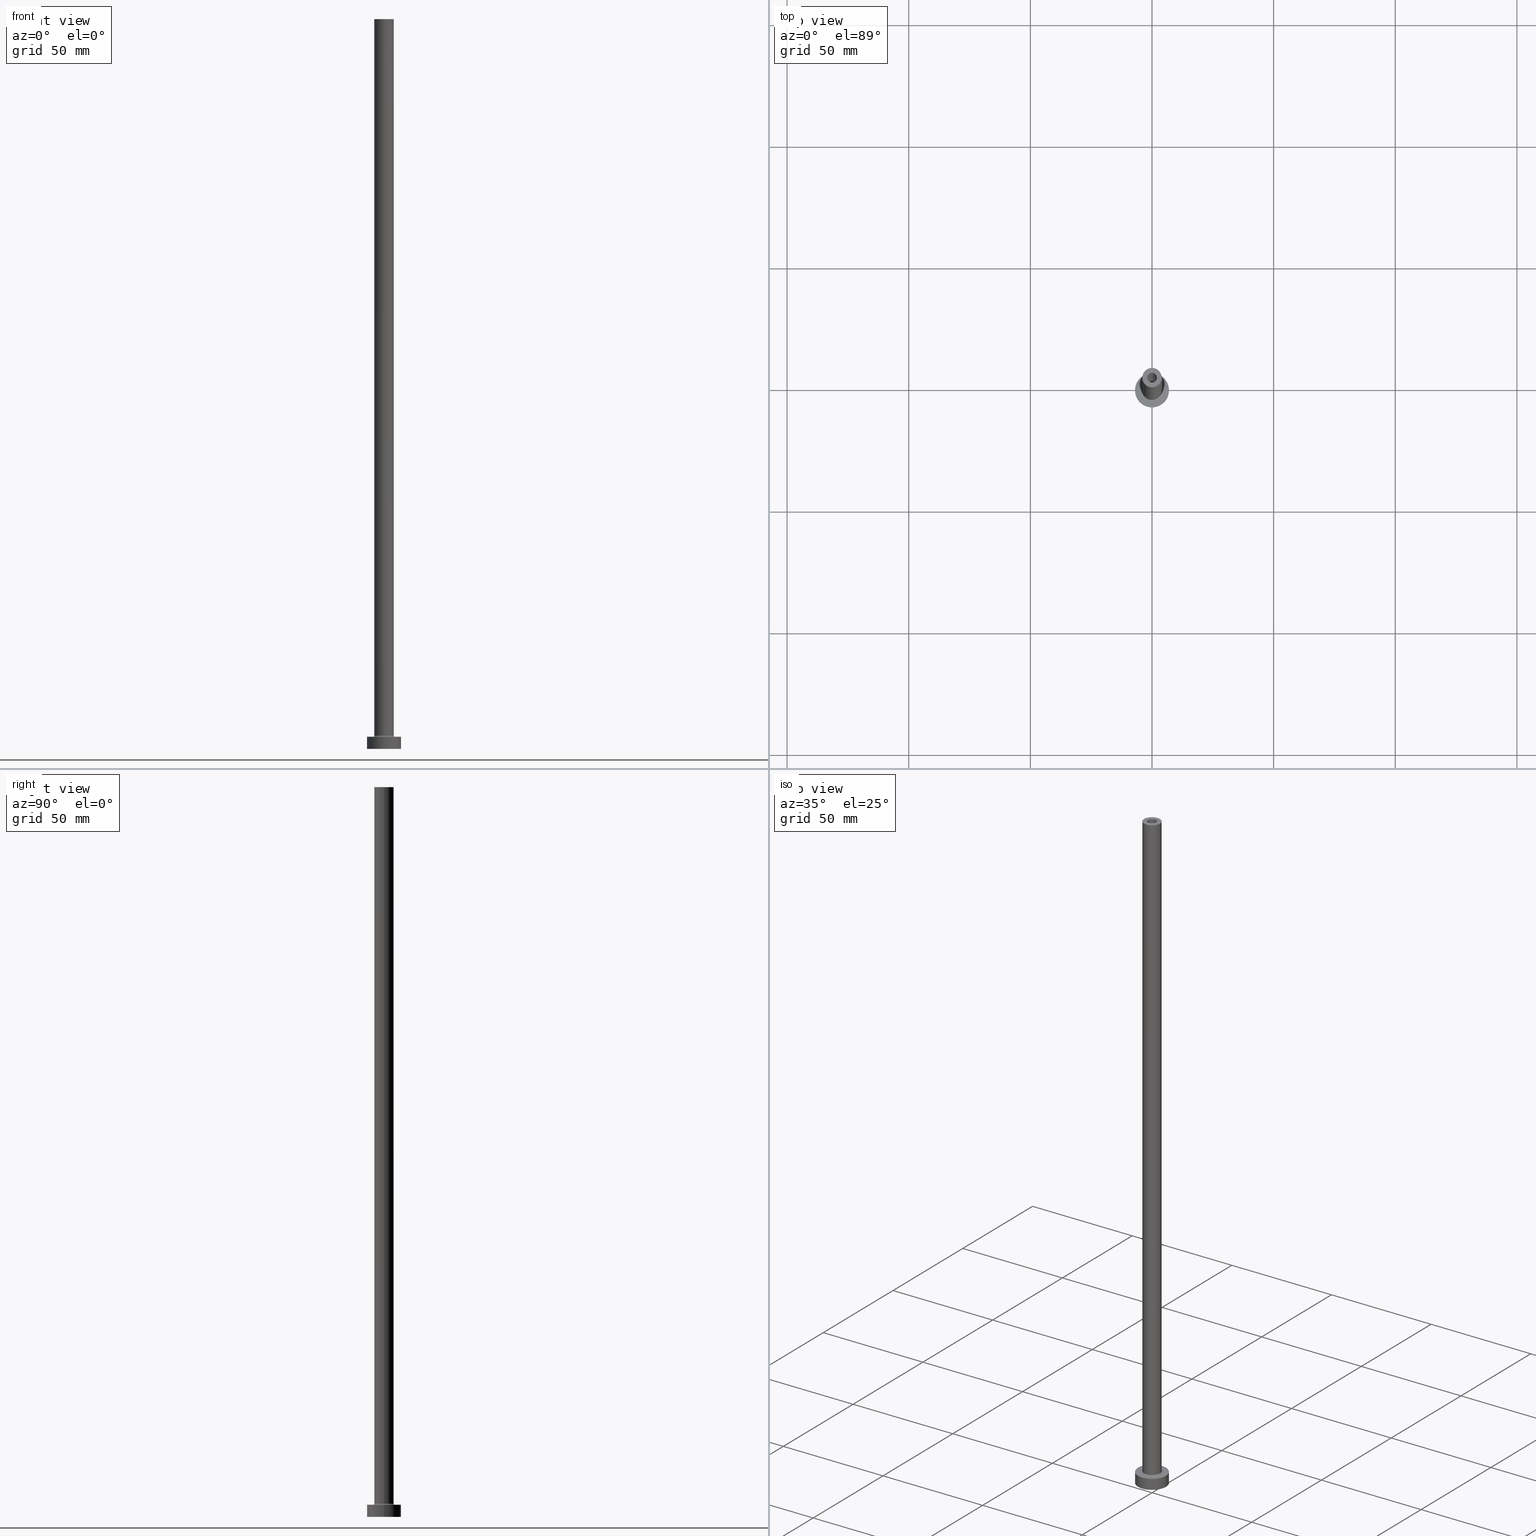
[diagram: canonical four-view strip — front | top / right | iso, engineering-drawing reading convention]
A machine part, canonical four-view strip (front | top / right | iso — engineering-drawing reading convention). The complete STEP part file that produces these views, byte-faithful:
ISO-10303-21;
HEADER;
FILE_DESCRIPTION (( 'STEP AP203' ),
    '1' );
FILE_NAME ('4f3f.STEP',
    '2023-02-13T17:38:03',
    ( '' ),
    ( '' ),
    'SwSTEP 2.0',
    'SolidWorks 2019',
    '' );
FILE_SCHEMA (( 'CONFIG_CONTROL_DESIGN' ));
ENDSEC;

DATA;
#1 = DIRECTION ( 'NONE',  ( 0.000000000000000000, 0.000000000000000000, 1.000000000000000000 ) ) ;
#2 = LINE ( 'NONE', #107, #106 ) ;
#3 = CARTESIAN_POINT ( 'NONE',  ( 7.000000000000000000, 8.572527594031473190E-16, 0.000000000000000000 ) ) ;
#4 = ADVANCED_FACE ( 'NONE', ( #273 ), #378, .F. ) ;
#5 = TOROIDAL_SURFACE ( 'NONE', #397, 4.500000000000000888, 0.5000000000000000000 ) ;
#6 = CARTESIAN_POINT ( 'NONE',  ( 0.000000000000000000, 0.000000000000000000, 0.000000000000000000 ) ) ;
#7 = DIRECTION ( 'NONE',  ( 0.000000000000000000, 0.000000000000000000, 1.000000000000000000 ) ) ;
#8 = EDGE_CURVE ( 'NONE', #417, #258, #18, .T. ) ;
#9 = CARTESIAN_POINT ( 'NONE',  ( 2.000000000000000000, 2.449293598294705921E-16, 300.0000000000000000 ) ) ;
#10 = EDGE_LOOP ( 'NONE', ( #308, #301, #68, #226 ) ) ;
#11 = PERSON_AND_ORGANIZATION ( #235, #350 ) ;
#12 = CARTESIAN_POINT ( 'NONE',  ( 0.000000000000000000, 0.000000000000000000, 300.0000000000000000 ) ) ;
#13 = EDGE_LOOP ( 'NONE', ( #17, #294 ) ) ;
#14 = CARTESIAN_POINT ( 'NONE',  ( 0.000000000000000000, 0.000000000000000000, 5.500000000000005329 ) ) ;
#15 = CARTESIAN_POINT ( 'NONE',  ( 2.149999999999999911, 2.632990618166809235E-16, 255.0000000000000000 ) ) ;
#16 = EDGE_CURVE ( 'NONE', #306, #240, #262, .T. ) ;
#17 = ORIENTED_EDGE ( 'NONE', *, *, #246, .T. ) ;
#18 = CIRCLE ( 'NONE', #348, 4.000000000000000000 ) ;
#19 = LINE ( 'NONE', #96, #41 ) ;
#20 = ORIENTED_EDGE ( 'NONE', *, *, #428, .F. ) ;
#21 = AXIS2_PLACEMENT_3D ( 'NONE', #6, #252, #424 ) ;
#22 = CC_DESIGN_APPROVAL ( #326, ( #391 ) ) ;
#23 = FACE_OUTER_BOUND ( 'NONE', #32, .T. ) ;
#24 = ORIENTED_EDGE ( 'NONE', *, *, #297, .T. ) ;
#25 = ADVANCED_FACE ( 'NONE', ( #149, #392 ), #359, .F. ) ;
#26 = DIRECTION ( 'NONE',  ( 1.000000000000000000, 0.000000000000000000, 0.000000000000000000 ) ) ;
#27 = EDGE_LOOP ( 'NONE', ( #459, #168, #458, #204 ) ) ;
#28 = DIRECTION ( 'NONE',  ( -1.000000000000000000, 1.224646799147351482E-16, 0.000000000000000000 ) ) ;
#29 = ORIENTED_EDGE ( 'NONE', *, *, #126, .T. ) ;
#30 = AXIS2_PLACEMENT_3D ( 'NONE', #52, #435, #405 ) ;
#31 = APPROVAL_PERSON_ORGANIZATION ( #186, #318, #410 ) ;
#32 = EDGE_LOOP ( 'NONE', ( #90, #271, #312, #229 ) ) ;
#33 = CARTESIAN_POINT ( 'NONE',  ( 0.000000000000000000, 0.000000000000000000, 300.0000000000000000 ) ) ;
#34 = CC_DESIGN_PERSON_AND_ORGANIZATION_ASSIGNMENT ( #227, #267, ( #102 ) ) ;
#35 = DIRECTION ( 'NONE',  ( 1.000000000000000000, 0.000000000000000000, 0.000000000000000000 ) ) ;
#36 = VECTOR ( 'NONE', #311, 1000.000000000000000 ) ;
#37 = CYLINDRICAL_SURFACE ( 'NONE', #321, 2.149999999999999911 ) ;
#38 = EDGE_CURVE ( 'NONE', #242, #419, #445, .T. ) ;
#39 = DIRECTION ( 'NONE',  ( 1.000000000000000000, 0.000000000000000000, 0.000000000000000000 ) ) ;
#40 = CARTESIAN_POINT ( 'NONE',  ( 0.000000000000000000, 0.000000000000000000, 5.000000000000000000 ) ) ;
#41 = VECTOR ( 'NONE', #57, 1000.000000000000000 ) ;
#42 = LINE ( 'NONE', #296, #390 ) ;
#43 = EDGE_LOOP ( 'NONE', ( #135, #237 ) ) ;
#44 = COORDINATED_UNIVERSAL_TIME_OFFSET ( 1, 0, .AHEAD. ) ;
#45 = DIRECTION ( 'NONE',  ( 0.000000000000000000, 0.000000000000000000, 1.000000000000000000 ) ) ;
#46 = VERTEX_POINT ( 'NONE', #3 ) ;
#47 = COORDINATED_UNIVERSAL_TIME_OFFSET ( 1, 0, .AHEAD. ) ;
#48 = DIRECTION ( 'NONE',  ( -0.000000000000000000, -0.000000000000000000, -1.000000000000000000 ) ) ;
#49 = VERTEX_POINT ( 'NONE', #283 ) ;
#50 = PERSON_AND_ORGANIZATION_ROLE ( 'design_owner' ) ;
#51 = AXIS2_PLACEMENT_3D ( 'NONE', #257, #7, #331 ) ;
#52 = CARTESIAN_POINT ( 'NONE',  ( 0.000000000000000000, 0.000000000000000000, 5.500000000000005329 ) ) ;
#53 = LOCAL_TIME ( 18, 38, 3.000000000000000000, #120 ) ;
#54 = EDGE_CURVE ( 'NONE', #269, #160, #356, .T. ) ;
#55 = CARTESIAN_POINT ( 'NONE',  ( 0.000000000000000000, 0.000000000000000000, 261.0811183182043465 ) ) ;
#56 = CALENDAR_DATE ( 2023, 13, 2 ) ;
#57 = DIRECTION ( 'NONE',  ( 0.000000000000000000, 0.000000000000000000, -1.000000000000000000 ) ) ;
#58 = CARTESIAN_POINT ( 'NONE',  ( 0.000000000000000000, 0.000000000000000000, 300.0000000000000000 ) ) ;
#59 = CLOSED_SHELL ( 'NONE', ( #422, #305, #215, #91, #76, #139, #150, #134, #351, #111, #334, #71, #25, #4 ) ) ;
#60 = CARTESIAN_POINT ( 'NONE',  ( -4.500000000000000888, 5.510910596163089556E-16, 5.500000000000005329 ) ) ;
#61 = EDGE_LOOP ( 'NONE', ( #185, #384, #174, #207 ) ) ;
#62 = CC_DESIGN_DATE_AND_TIME_ASSIGNMENT ( #220, #188, ( #391 ) ) ;
#63 = DIRECTION ( 'NONE',  ( 0.000000000000000000, 0.000000000000000000, -1.000000000000000000 ) ) ;
#64 = EDGE_LOOP ( 'NONE', ( #414, #344 ) ) ;
#65 = CARTESIAN_POINT ( 'NONE',  ( -2.000000000000000000, 0.000000000000000000, 255.0000000000000000 ) ) ;
#66 = ORIENTED_EDGE ( 'NONE', *, *, #187, .T. ) ;
#67 = AXIS2_PLACEMENT_3D ( 'NONE', #360, #320, #247 ) ;
#68 = ORIENTED_EDGE ( 'NONE', *, *, #370, .T. ) ;
#69 = AXIS2_PLACEMENT_3D ( 'NONE', #176, #1, #109 ) ;
#70 = CC_DESIGN_APPROVAL ( #455, ( #345 ) ) ;
#71 = ADVANCED_FACE ( 'NONE', ( #214 ), #37, .F. ) ;
#72 = FACE_BOUND ( 'NONE', #123, .T. ) ;
#73 = APPLICATION_CONTEXT ( 'configuration controlled 3d designs of mechanical parts and assemblies' ) ;
#74 = DIRECTION ( 'NONE',  ( 0.000000000000000000, 0.000000000000000000, 1.000000000000000000 ) ) ;
#75 = CARTESIAN_POINT ( 'NONE',  ( 0.000000000000000000, 0.000000000000000000, 255.0000000000000000 ) ) ;
#76 = ADVANCED_FACE ( 'NONE', ( #315 ), #80, .T. ) ;
#77 = AXIS2_PLACEMENT_3D ( 'NONE', #292, #402, #289 ) ;
#78 = CARTESIAN_POINT ( 'NONE',  ( 0.000000000000000000, 0.000000000000000000, 300.0000000000000000 ) ) ;
#79 = UNCERTAINTY_MEASURE_WITH_UNIT (LENGTH_MEASURE( 1.000000000000000082E-05 ), #452, 'distance_accuracy_value', 'NONE');
#80 = CYLINDRICAL_SURFACE ( 'NONE', #299, 7.000000000000000000 ) ;
#81 = CARTESIAN_POINT ( 'NONE',  ( 0.000000000000000000, 0.000000000000000000, 5.500000000000005329 ) ) ;
#82 = AXIS2_PLACEMENT_3D ( 'NONE', #290, #155, #184 ) ;
#83 = LOCAL_TIME ( 18, 38, 3.000000000000000000, #194 ) ;
#84 = CARTESIAN_POINT ( 'NONE',  ( -7.000000000000000000, 0.000000000000000000, 5.000000000000000000 ) ) ;
#85 = PERSON_AND_ORGANIZATION ( #235, #350 ) ;
#86 = DIRECTION ( 'NONE',  ( 0.000000000000000000, 0.000000000000000000, -1.000000000000000000 ) ) ;
#87 = ORIENTED_EDGE ( 'NONE', *, *, #437, .T. ) ;
#88 = SHAPE_DEFINITION_REPRESENTATION ( #234, #152 ) ;
#89 = DIRECTION ( 'NONE',  ( 0.000000000000000000, 0.000000000000000000, -1.000000000000000000 ) ) ;
#90 = ORIENTED_EDGE ( 'NONE', *, *, #406, .T. ) ;
#91 = ADVANCED_FACE ( 'NONE', ( #141 ), #281, .T. ) ;
#92 = APPROVAL_DATE_TIME ( #446, #318 ) ;
#93 = CIRCLE ( 'NONE', #82, 4.500000000000000888 ) ;
#94 = CARTESIAN_POINT ( 'NONE',  ( 0.000000000000000000, 0.000000000000000000, 5.000000000000000000 ) ) ;
#95 = APPROVAL_DATE_TIME ( #253, #455 ) ;
#96 = CARTESIAN_POINT ( 'NONE',  ( -2.149999999999999911, 0.000000000000000000, 261.0811183182043465 ) ) ;
#97 = ORIENTED_EDGE ( 'NONE', *, *, #38, .F. ) ;
#98 = LINE ( 'NONE', #165, #36 ) ;
#99 = APPLICATION_CONTEXT ( 'configuration controlled 3d designs of mechanical parts and assemblies' ) ;
#100 = ORIENTED_EDGE ( 'NONE', *, *, #182, .F. ) ;
#101 = ORIENTED_EDGE ( 'NONE', *, *, #433, .T. ) ;
#102 = PRODUCT_DEFINITION_FORMATION_WITH_SPECIFIED_SOURCE ( 'LIBOVOLN�', '', #148, .NOT_KNOWN. ) ;
#103 = VERTEX_POINT ( 'NONE', #216 ) ;
#104 = VERTEX_POINT ( 'NONE', #180 ) ;
#105 = EDGE_CURVE ( 'NONE', #104, #46, #2, .T. ) ;
#106 = VECTOR ( 'NONE', #362, 1000.000000000000000 ) ;
#107 = CARTESIAN_POINT ( 'NONE',  ( 7.000000000000000000, 8.572527594031473190E-16, 5.000000000000000000 ) ) ;
#108 = CIRCLE ( 'NONE', #438, 2.000000000000000000 ) ;
#109 = DIRECTION ( 'NONE',  ( 1.000000000000000000, 0.000000000000000000, 0.000000000000000000 ) ) ;
#110 = FACE_BOUND ( 'NONE', #328, .T. ) ;
#111 = ADVANCED_FACE ( 'NONE', ( #72, #285 ), #145, .T. ) ;
#112 = DIRECTION ( 'NONE',  ( 1.000000000000000000, 0.000000000000000000, 0.000000000000000000 ) ) ;
#113 = AXIS2_PLACEMENT_3D ( 'NONE', #94, #444, #221 ) ;
#114 = CARTESIAN_POINT ( 'NONE',  ( 0.000000000000000000, 0.000000000000000000, 5.000000000000000000 ) ) ;
#115 = CARTESIAN_POINT ( 'NONE',  ( -2.149999999999999911, 0.000000000000000000, 0.000000000000000000 ) ) ;
#116 = EDGE_CURVE ( 'NONE', #104, #233, #147, .T. ) ;
#117 = CARTESIAN_POINT ( 'NONE',  ( -7.000000000000000000, 0.000000000000000000, 5.000000000000000000 ) ) ;
#118 = MANIFOLD_SOLID_BREP ( 'Odebrat vysunut�m4', #59 ) ;
#119 = AXIS2_PLACEMENT_3D ( 'NONE', #416, #413, #136 ) ;
#120 = COORDINATED_UNIVERSAL_TIME_OFFSET ( 1, 0, .AHEAD. ) ;
#121 = CIRCLE ( 'NONE', #316, 2.000000000000000000 ) ;
#122 = DIRECTION ( 'NONE',  ( 0.000000000000000000, 0.000000000000000000, -1.000000000000000000 ) ) ;
#123 = EDGE_LOOP ( 'NONE', ( #172, #389 ) ) ;
#124 = APPROVAL_ROLE ( '' ) ;
#125 = DIRECTION ( 'NONE',  ( 1.000000000000000000, 0.000000000000000000, 0.000000000000000000 ) ) ;
#126 = EDGE_CURVE ( 'NONE', #233, #104, #461, .T. ) ;
#127 = CARTESIAN_POINT ( 'NONE',  ( 4.000000000000000000, 4.898587196589412829E-16, 300.0000000000000000 ) ) ;
#128 = CIRCLE ( 'NONE', #51, 7.000000000000000000 ) ;
#129 = DIRECTION ( 'NONE',  ( -0.000000000000000000, -0.000000000000000000, -1.000000000000000000 ) ) ;
#130 = CC_DESIGN_APPROVAL ( #318, ( #102 ) ) ;
#131 = ORIENTED_EDGE ( 'NONE', *, *, #198, .T. ) ;
#132 = CARTESIAN_POINT ( 'NONE',  ( 4.000000000000000000, 4.898587196589412829E-16, 5.500000000000005329 ) ) ;
#133 = ORIENTED_EDGE ( 'NONE', *, *, #297, .F. ) ;
#134 = ADVANCED_FACE ( 'NONE', ( #110, #322 ), #319, .F. ) ;
#135 = ORIENTED_EDGE ( 'NONE', *, *, #284, .F. ) ;
#136 = DIRECTION ( 'NONE',  ( 1.000000000000000000, 0.000000000000000000, 0.000000000000000000 ) ) ;
#137 = EDGE_LOOP ( 'NONE', ( #138, #275 ) ) ;
#138 = ORIENTED_EDGE ( 'NONE', *, *, #400, .T. ) ;
#139 = ADVANCED_FACE ( 'NONE', ( #399 ), #245, .T. ) ;
#140 = EDGE_LOOP ( 'NONE', ( #97, #87, #304, #451 ) ) ;
#141 = FACE_OUTER_BOUND ( 'NONE', #140, .T. ) ;
#142 = CIRCLE ( 'NONE', #266, 7.000000000000000000 ) ;
#143 = LOCAL_TIME ( 18, 38, 3.000000000000000000, #44 ) ;
#144 = CARTESIAN_POINT ( 'NONE',  ( 0.000000000000000000, 0.000000000000000000, 5.000000000000000000 ) ) ;
#145 = PLANE ( 'NONE',  #340 ) ;
#146 = DIRECTION ( 'NONE',  ( -0.000000000000000000, -0.000000000000000000, -1.000000000000000000 ) ) ;
#147 = CIRCLE ( 'NONE', #420, 7.000000000000000000 ) ;
#148 = PRODUCT ( '4f3f', '4f3f', '', ( #368 ) ) ;
#149 = FACE_BOUND ( 'NONE', #137, .T. ) ;
#150 = ADVANCED_FACE ( 'NONE', ( #217, #254 ), #369, .T. ) ;
#151 = CARTESIAN_POINT ( 'NONE',  ( 2.149999999999999911, 2.632990618166809235E-16, 261.0811183182043465 ) ) ;
#152 = ADVANCED_BREP_SHAPE_REPRESENTATION ( '4f3f', ( #118, #77 ), #357 ) ;
#153 = DIRECTION ( 'NONE',  ( 0.000000000000000000, 0.000000000000000000, 1.000000000000000000 ) ) ;
#154 = ORIENTED_EDGE ( 'NONE', *, *, #187, .F. ) ;
#155 = DIRECTION ( 'NONE',  ( -0.000000000000000000, -0.000000000000000000, -1.000000000000000000 ) ) ;
#156 = PERSON_AND_ORGANIZATION ( #235, #350 ) ;
#157 = LINE ( 'NONE', #151, #431 ) ;
#158 = PERSON_AND_ORGANIZATION ( #235, #350 ) ;
#159 = DIRECTION ( 'NONE',  ( 0.000000000000000000, 0.000000000000000000, 1.000000000000000000 ) ) ;
#160 = VERTEX_POINT ( 'NONE', #225 ) ;
#161 = AXIS2_PLACEMENT_3D ( 'NONE', #81, #159, #26 ) ;
#162 = CARTESIAN_POINT ( 'NONE',  ( 0.000000000000000000, 0.000000000000000000, 300.0000000000000000 ) ) ;
#163 = ORIENTED_EDGE ( 'NONE', *, *, #380, .T. ) ;
#164 = PRODUCT_RELATED_PRODUCT_CATEGORY ( 'detail', '', ( #148 ) ) ;
#165 = CARTESIAN_POINT ( 'NONE',  ( 4.000000000000000000, 4.898587196589412829E-16, 300.0000000000000000 ) ) ;
#166 = ORIENTED_EDGE ( 'NONE', *, *, #284, .T. ) ;
#167 = DIRECTION ( 'NONE',  ( 0.000000000000000000, 0.000000000000000000, 1.000000000000000000 ) ) ;
#168 = ORIENTED_EDGE ( 'NONE', *, *, #394, .T. ) ;
#169 = CARTESIAN_POINT ( 'NONE',  ( 0.000000000000000000, 0.000000000000000000, 0.000000000000000000 ) ) ;
#170 = EDGE_CURVE ( 'NONE', #375, #407, #93, .T. ) ;
#171 = CIRCLE ( 'NONE', #302, 4.500000000000000888 ) ;
#172 = ORIENTED_EDGE ( 'NONE', *, *, #406, .F. ) ;
#173 = LOCAL_TIME ( 18, 38, 3.000000000000000000, #47 ) ;
#174 = ORIENTED_EDGE ( 'NONE', *, *, #265, .T. ) ;
#175 = DIRECTION ( 'NONE',  ( 1.000000000000000000, 0.000000000000000000, 0.000000000000000000 ) ) ;
#176 = CARTESIAN_POINT ( 'NONE',  ( 0.000000000000000000, 0.000000000000000000, 5.000000000000000000 ) ) ;
#177 = TOROIDAL_SURFACE ( 'NONE', #161, 4.500000000000000888, 0.5000000000000000000 ) ;
#178 = LOCAL_TIME ( 18, 38, 3.000000000000000000, #436 ) ;
#179 = CARTESIAN_POINT ( 'NONE',  ( 0.000000000000000000, 0.000000000000000000, 300.0000000000000000 ) ) ;
#180 = CARTESIAN_POINT ( 'NONE',  ( 7.000000000000000000, 8.572527594031473190E-16, 5.000000000000000000 ) ) ;
#181 = CARTESIAN_POINT ( 'NONE',  ( 0.000000000000000000, 0.000000000000000000, 0.000000000000000000 ) ) ;
#182 = EDGE_CURVE ( 'NONE', #306, #160, #157, .T. ) ;
#183 = AXIS2_PLACEMENT_3D ( 'NONE', #223, #288, #335 ) ;
#184 = DIRECTION ( 'NONE',  ( 1.000000000000000000, 0.000000000000000000, 0.000000000000000000 ) ) ;
#185 = ORIENTED_EDGE ( 'NONE', *, *, #394, .F. ) ;
#186 = PERSON_AND_ORGANIZATION ( #235, #350 ) ;
#187 = EDGE_CURVE ( 'NONE', #240, #306, #208, .T. ) ;
#188 = DATE_TIME_ROLE ( 'classification_date' ) ;
#189 = DIRECTION ( 'NONE',  ( 1.000000000000000000, 0.000000000000000000, 0.000000000000000000 ) ) ;
#190 = EDGE_LOOP ( 'NONE', ( #202, #349, #325, #20 ) ) ;
#191 = AXIS2_PLACEMENT_3D ( 'NONE', #144, #282, #429 ) ;
#192 = PERSON_AND_ORGANIZATION_ROLE ( 'creator' ) ;
#193 = CARTESIAN_POINT ( 'NONE',  ( 0.000000000000000000, 0.000000000000000000, 255.0000000000000000 ) ) ;
#194 = COORDINATED_UNIVERSAL_TIME_OFFSET ( 1, 0, .AHEAD. ) ;
#195 = DIRECTION ( 'NONE',  ( -1.000000000000000000, 0.000000000000000000, 0.000000000000000000 ) ) ;
#196 = EDGE_LOOP ( 'NONE', ( #154, #338 ) ) ;
#197 = CARTESIAN_POINT ( 'NONE',  ( 0.000000000000000000, 0.000000000000000000, 255.0000000000000000 ) ) ;
#198 = EDGE_CURVE ( 'NONE', #233, #103, #411, .T. ) ;
#199 = DIRECTION ( 'NONE',  ( 0.000000000000000000, 0.000000000000000000, -1.000000000000000000 ) ) ;
#200 = AXIS2_PLACEMENT_3D ( 'NONE', #55, #89, #195 ) ;
#201 = DIRECTION ( 'NONE',  ( 1.000000000000000000, 0.000000000000000000, 0.000000000000000000 ) ) ;
#202 = ORIENTED_EDGE ( 'NONE', *, *, #251, .F. ) ;
#203 =( NAMED_UNIT ( * ) PLANE_ANGLE_UNIT ( ) SI_UNIT ( $, .RADIAN. ) );
#204 = ORIENTED_EDGE ( 'NONE', *, *, #265, .F. ) ;
#205 = EDGE_CURVE ( 'NONE', #258, #417, #323, .T. ) ;
#206 = CARTESIAN_POINT ( 'NONE',  ( -4.000000000000000000, 0.000000000000000000, 300.0000000000000000 ) ) ;
#207 = ORIENTED_EDGE ( 'NONE', *, *, #170, .F. ) ;
#208 = CIRCLE ( 'NONE', #457, 2.149999999999999911 ) ;
#209 = EDGE_LOOP ( 'NONE', ( #66, #421, #24, #291 ) ) ;
#210 = DIRECTION ( 'NONE',  ( 0.000000000000000000, 0.000000000000000000, 1.000000000000000000 ) ) ;
#211 = DIRECTION ( 'NONE',  ( 1.000000000000000000, 0.000000000000000000, 0.000000000000000000 ) ) ;
#212 = EDGE_CURVE ( 'NONE', #49, #423, #42, .T. ) ;
#213 = DIRECTION ( 'NONE',  ( -1.000000000000000000, 0.000000000000000000, 0.000000000000000000 ) ) ;
#214 = FACE_OUTER_BOUND ( 'NONE', #453, .T. ) ;
#215 = ADVANCED_FACE ( 'NONE', ( #228 ), #5, .F. ) ;
#216 = CARTESIAN_POINT ( 'NONE',  ( -7.000000000000000000, 0.000000000000000000, 0.000000000000000000 ) ) ;
#217 = FACE_BOUND ( 'NONE', #64, .T. ) ;
#218 = ORIENTED_EDGE ( 'NONE', *, *, #437, .F. ) ;
#219 = CIRCLE ( 'NONE', #382, 0.5000000000000004441 ) ;
#220 = DATE_AND_TIME ( #371, #173 ) ;
#221 = DIRECTION ( 'NONE',  ( 1.000000000000000000, 0.000000000000000000, -0.000000000000000000 ) ) ;
#222 = SECURITY_CLASSIFICATION_LEVEL ( 'unclassified' ) ;
#223 = CARTESIAN_POINT ( 'NONE',  ( 0.000000000000000000, 0.000000000000000000, 300.0000000000000000 ) ) ;
#224 = PERSON_AND_ORGANIZATION ( #235, #350 ) ;
#225 = CARTESIAN_POINT ( 'NONE',  ( 2.149999999999999911, 2.632990618166809235E-16, 0.000000000000000000 ) ) ;
#226 = ORIENTED_EDGE ( 'NONE', *, *, #198, .F. ) ;
#227 = PERSON_AND_ORGANIZATION ( #235, #350 ) ;
#228 = FACE_OUTER_BOUND ( 'NONE', #27, .T. ) ;
#229 = ORIENTED_EDGE ( 'NONE', *, *, #212, .F. ) ;
#230 = APPROVAL_STATUS ( 'not_yet_approved' ) ;
#231 = EDGE_CURVE ( 'NONE', #456, #49, #425, .T. ) ;
#232 = CARTESIAN_POINT ( 'NONE',  ( -4.500000000000000888, 5.510910596163088569E-16, 5.000000000000002665 ) ) ;
#233 = VERTEX_POINT ( 'NONE', #84 ) ;
#234 = PRODUCT_DEFINITION_SHAPE ( 'NONE', 'NONE',  #345 ) ;
#235 = PERSON ( 'NEUR�EN�', 'NEUR�EN�', 'NEUR�EN�', ('NEUR�EN�'), ('NEUR�EN�'), ('NEUR�EN�') ) ;
#236 = DIRECTION ( 'NONE',  ( -1.000000000000000000, 0.000000000000000000, 0.000000000000000000 ) ) ;
#237 = ORIENTED_EDGE ( 'NONE', *, *, #370, .F. ) ;
#238 = VECTOR ( 'NONE', #347, 1000.000000000000000 ) ;
#239 = CARTESIAN_POINT ( 'NONE',  ( 0.000000000000000000, 0.000000000000000000, 300.0000000000000000 ) ) ;
#240 = VERTEX_POINT ( 'NONE', #439 ) ;
#241 = CARTESIAN_POINT ( 'NONE',  ( 4.500000000000000888, 0.000000000000000000, 5.000000000000002665 ) ) ;
#242 = VERTEX_POINT ( 'NONE', #127 ) ;
#243 = ORIENTED_EDGE ( 'NONE', *, *, #54, .F. ) ;
#244 = CIRCLE ( 'NONE', #373, 2.149999999999999911 ) ;
#245 = CYLINDRICAL_SURFACE ( 'NONE', #191, 7.000000000000000000 ) ;
#246 = EDGE_CURVE ( 'NONE', #419, #242, #309, .T. ) ;
#247 = DIRECTION ( 'NONE',  ( 1.000000000000000000, 0.000000000000000000, -0.000000000000000000 ) ) ;
#248 = CARTESIAN_POINT ( 'NONE',  ( 0.000000000000000000, 0.000000000000000000, 5.500000000000005329 ) ) ;
#249 = DIRECTION ( 'NONE',  ( -1.000000000000000000, 0.000000000000000000, 0.000000000000000000 ) ) ;
#250 = VECTOR ( 'NONE', #263, 1000.000000000000000 ) ;
#251 = EDGE_CURVE ( 'NONE', #456, #352, #324, .T. ) ;
#252 = DIRECTION ( 'NONE',  ( 0.000000000000000000, 0.000000000000000000, 1.000000000000000000 ) ) ;
#253 = DATE_AND_TIME ( #327, #178 ) ;
#254 = FACE_OUTER_BOUND ( 'NONE', #277, .T. ) ;
#255 = AXIS2_PLACEMENT_3D ( 'NONE', #162, #307, #236 ) ;
#256 = CALENDAR_DATE ( 2023, 13, 2 ) ;
#257 = CARTESIAN_POINT ( 'NONE',  ( 0.000000000000000000, 0.000000000000000000, 0.000000000000000000 ) ) ;
#258 = VERTEX_POINT ( 'NONE', #409 ) ;
#259 = APPROVAL_ROLE ( '' ) ;
#260 = CYLINDRICAL_SURFACE ( 'NONE', #200, 2.149999999999999911 ) ;
#261 = APPROVAL_STATUS ( 'not_yet_approved' ) ;
#262 = CIRCLE ( 'NONE', #355, 2.149999999999999911 ) ;
#263 = DIRECTION ( 'NONE',  ( 0.000000000000000000, 0.000000000000000000, -1.000000000000000000 ) ) ;
#264 = ORIENTED_EDGE ( 'NONE', *, *, #116, .T. ) ;
#265 = EDGE_CURVE ( 'NONE', #417, #407, #280, .T. ) ;
#266 = AXIS2_PLACEMENT_3D ( 'NONE', #169, #341, #303 ) ;
#267 = PERSON_AND_ORGANIZATION_ROLE ( 'design_supplier' ) ;
#268 = DIRECTION ( 'NONE',  ( 1.224646799147353207E-16, 1.000000000000000000, -0.000000000000000000 ) ) ;
#269 = VERTEX_POINT ( 'NONE', #115 ) ;
#270 = CYLINDRICAL_SURFACE ( 'NONE', #332, 2.000000000000000000 ) ;
#271 = ORIENTED_EDGE ( 'NONE', *, *, #251, .T. ) ;
#272 = CARTESIAN_POINT ( 'NONE',  ( -4.000000000000000000, 0.000000000000000000, 300.0000000000000000 ) ) ;
#273 = FACE_OUTER_BOUND ( 'NONE', #190, .T. ) ;
#274 = CARTESIAN_POINT ( 'NONE',  ( 2.000000000000000000, 2.449293598294705921E-16, 300.0000000000000000 ) ) ;
#275 = ORIENTED_EDGE ( 'NONE', *, *, #428, .T. ) ;
#276 = ORIENTED_EDGE ( 'NONE', *, *, #16, .T. ) ;
#277 = EDGE_LOOP ( 'NONE', ( #29, #264 ) ) ;
#278 = AXIS2_PLACEMENT_3D ( 'NONE', #33, #146, #317 ) ;
#279 = CC_DESIGN_PERSON_AND_ORGANIZATION_ASSIGNMENT ( #333, #339, ( #102 ) ) ;
#280 = CIRCLE ( 'NONE', #404, 0.5000000000000004441 ) ;
#281 = CYLINDRICAL_SURFACE ( 'NONE', #278, 4.000000000000000000 ) ;
#282 = DIRECTION ( 'NONE',  ( -0.000000000000000000, -0.000000000000000000, -1.000000000000000000 ) ) ;
#283 = CARTESIAN_POINT ( 'NONE',  ( -2.000000000000000000, 0.000000000000000000, 300.0000000000000000 ) ) ;
#284 = EDGE_CURVE ( 'NONE', #103, #46, #128, .T. ) ;
#285 = FACE_OUTER_BOUND ( 'NONE', #13, .T. ) ;
#286 = CIRCLE ( 'NONE', #119, 2.000000000000000000 ) ;
#287 = FACE_OUTER_BOUND ( 'NONE', #61, .T. ) ;
#288 = DIRECTION ( 'NONE',  ( 0.000000000000000000, 0.000000000000000000, 1.000000000000000000 ) ) ;
#289 = DIRECTION ( 'NONE',  ( 1.000000000000000000, 0.000000000000000000, 0.000000000000000000 ) ) ;
#290 = CARTESIAN_POINT ( 'NONE',  ( 0.000000000000000000, 0.000000000000000000, 5.000000000000000000 ) ) ;
#291 = ORIENTED_EDGE ( 'NONE', *, *, #380, .F. ) ;
#292 = CARTESIAN_POINT ( 'NONE',  ( 0.000000000000000000, 0.000000000000000000, 0.000000000000000000 ) ) ;
#293 = CARTESIAN_POINT ( 'NONE',  ( 0.000000000000000000, 0.000000000000000000, 0.000000000000000000 ) ) ;
#294 = ORIENTED_EDGE ( 'NONE', *, *, #38, .T. ) ;
#295 = DATE_AND_TIME ( #256, #53 ) ;
#296 = CARTESIAN_POINT ( 'NONE',  ( -2.000000000000000000, 0.000000000000000000, 300.0000000000000000 ) ) ;
#297 = EDGE_CURVE ( 'NONE', #160, #269, #244, .T. ) ;
#298 = DATE_TIME_ROLE ( 'creation_date' ) ;
#299 = AXIS2_PLACEMENT_3D ( 'NONE', #40, #398, #213 ) ;
#300 = LINE ( 'NONE', #206, #238 ) ;
#301 = ORIENTED_EDGE ( 'NONE', *, *, #105, .T. ) ;
#302 = AXIS2_PLACEMENT_3D ( 'NONE', #379, #129, #377 ) ;
#303 = DIRECTION ( 'NONE',  ( 1.000000000000000000, 0.000000000000000000, 0.000000000000000000 ) ) ;
#304 = ORIENTED_EDGE ( 'NONE', *, *, #8, .T. ) ;
#305 = ADVANCED_FACE ( 'NONE', ( #363 ), #260, .F. ) ;
#306 = VERTEX_POINT ( 'NONE', #15 ) ;
#307 = DIRECTION ( 'NONE',  ( -0.000000000000000000, -0.000000000000000000, -1.000000000000000000 ) ) ;
#308 = ORIENTED_EDGE ( 'NONE', *, *, #116, .F. ) ;
#309 = CIRCLE ( 'NONE', #183, 4.000000000000000000 ) ;
#310 = APPROVAL_PERSON_ORGANIZATION ( #11, #326, #259 ) ;
#311 = DIRECTION ( 'NONE',  ( -0.000000000000000000, -0.000000000000000000, -1.000000000000000000 ) ) ;
#312 = ORIENTED_EDGE ( 'NONE', *, *, #400, .F. ) ;
#313 = ORIENTED_EDGE ( 'NONE', *, *, #246, .F. ) ;
#314 = CC_DESIGN_PERSON_AND_ORGANIZATION_ASSIGNMENT ( #156, #50, ( #148 ) ) ;
#315 = FACE_OUTER_BOUND ( 'NONE', #10, .T. ) ;
#316 = AXIS2_PLACEMENT_3D ( 'NONE', #239, #343, #450 ) ;
#317 = DIRECTION ( 'NONE',  ( -1.000000000000000000, 0.000000000000000000, 0.000000000000000000 ) ) ;
#318 = APPROVAL ( #230, 'NEUR�EN�' ) ;
#319 = PLANE ( 'NONE',  #21 ) ;
#320 = DIRECTION ( 'NONE',  ( 0.000000000000000000, 0.000000000000000000, 1.000000000000000000 ) ) ;
#321 = AXIS2_PLACEMENT_3D ( 'NONE', #460, #430, #249 ) ;
#322 = FACE_OUTER_BOUND ( 'NONE', #43, .T. ) ;
#323 = CIRCLE ( 'NONE', #30, 4.000000000000000000 ) ;
#324 = LINE ( 'NONE', #9, #250 ) ;
#325 = ORIENTED_EDGE ( 'NONE', *, *, #212, .T. ) ;
#326 = APPROVAL ( #366, 'NEUR�EN�' ) ;
#327 = CALENDAR_DATE ( 2023, 13, 2 ) ;
#328 = EDGE_LOOP ( 'NONE', ( #243, #133 ) ) ;
#329 = AXIS2_PLACEMENT_3D ( 'NONE', #58, #199, #353 ) ;
#330 = APPLICATION_PROTOCOL_DEFINITION ( 'international standard', 'config_control_design', 1994, #99 ) ;
#331 = DIRECTION ( 'NONE',  ( 1.000000000000000000, 0.000000000000000000, 0.000000000000000000 ) ) ;
#332 = AXIS2_PLACEMENT_3D ( 'NONE', #383, #63, #454 ) ;
#333 = PERSON_AND_ORGANIZATION ( #235, #350 ) ;
#334 = ADVANCED_FACE ( 'NONE', ( #287 ), #177, .F. ) ;
#335 = DIRECTION ( 'NONE',  ( 1.000000000000000000, 0.000000000000000000, 0.000000000000000000 ) ) ;
#336 = DATE_AND_TIME ( #56, #143 ) ;
#337 = DIRECTION ( 'NONE',  ( 1.000000000000000000, 0.000000000000000000, 0.000000000000000000 ) ) ;
#338 = ORIENTED_EDGE ( 'NONE', *, *, #16, .F. ) ;
#339 = PERSON_AND_ORGANIZATION_ROLE ( 'creator' ) ;
#340 = AXIS2_PLACEMENT_3D ( 'NONE', #179, #432, #354 ) ;
#341 = DIRECTION ( 'NONE',  ( 0.000000000000000000, 0.000000000000000000, 1.000000000000000000 ) ) ;
#342 = EDGE_LOOP ( 'NONE', ( #218, #313, #101, #412 ) ) ;
#343 = DIRECTION ( 'NONE',  ( 0.000000000000000000, 0.000000000000000000, 1.000000000000000000 ) ) ;
#344 = ORIENTED_EDGE ( 'NONE', *, *, #170, .T. ) ;
#345 = PRODUCT_DEFINITION ( 'NEZN�M�', '', #102, #361 ) ;
#346 = ORIENTED_EDGE ( 'NONE', *, *, #105, .F. ) ;
#347 = DIRECTION ( 'NONE',  ( -0.000000000000000000, -0.000000000000000000, -1.000000000000000000 ) ) ;
#348 = AXIS2_PLACEMENT_3D ( 'NONE', #248, #395, #175 ) ;
#349 = ORIENTED_EDGE ( 'NONE', *, *, #231, .T. ) ;
#350 = ORGANIZATION ( 'NEUR�EN�', 'NEUR�EN�', '' ) ;
#351 = ADVANCED_FACE ( 'NONE', ( #401 ), #418, .T. ) ;
#352 = VERTEX_POINT ( 'NONE', #447 ) ;
#353 = DIRECTION ( 'NONE',  ( -1.000000000000000000, 0.000000000000000000, 0.000000000000000000 ) ) ;
#354 = DIRECTION ( 'NONE',  ( 1.000000000000000000, 0.000000000000000000, -0.000000000000000000 ) ) ;
#355 = AXIS2_PLACEMENT_3D ( 'NONE', #75, #393, #112 ) ;
#356 = CIRCLE ( 'NONE', #388, 2.149999999999999911 ) ;
#357 =( GEOMETRIC_REPRESENTATION_CONTEXT ( 3 ) GLOBAL_UNCERTAINTY_ASSIGNED_CONTEXT ( ( #79 ) ) GLOBAL_UNIT_ASSIGNED_CONTEXT ( ( #452, #203, #385 ) ) REPRESENTATION_CONTEXT ( 'NONE', 'WORKASPACE' ) );
#358 = CC_DESIGN_SECURITY_CLASSIFICATION ( #391, ( #102 ) ) ;
#359 = PLANE ( 'NONE',  #67 ) ;
#360 = CARTESIAN_POINT ( 'NONE',  ( 0.000000000000000000, 0.000000000000000000, 255.0000000000000000 ) ) ;
#361 = DESIGN_CONTEXT ( 'detailed design', #99, 'design' ) ;
#362 = DIRECTION ( 'NONE',  ( -0.000000000000000000, -0.000000000000000000, -1.000000000000000000 ) ) ;
#363 = FACE_OUTER_BOUND ( 'NONE', #209, .T. ) ;
#364 = CC_DESIGN_DATE_AND_TIME_ASSIGNMENT ( #295, #298, ( #345 ) ) ;
#365 = VECTOR ( 'NONE', #48, 1000.000000000000000 ) ;
#366 = APPROVAL_STATUS ( 'not_yet_approved' ) ;
#367 = DIRECTION ( 'NONE',  ( 0.000000000000000000, 0.000000000000000000, 1.000000000000000000 ) ) ;
#368 = MECHANICAL_CONTEXT ( 'NONE', #73, 'mechanical' ) ;
#369 = PLANE ( 'NONE',  #113 ) ;
#370 = EDGE_CURVE ( 'NONE', #46, #103, #142, .T. ) ;
#371 = CALENDAR_DATE ( 2023, 13, 2 ) ;
#372 = DIRECTION ( 'NONE',  ( 0.000000000000000000, 0.000000000000000000, -1.000000000000000000 ) ) ;
#373 = AXIS2_PLACEMENT_3D ( 'NONE', #293, #442, #125 ) ;
#374 = CARTESIAN_POINT ( 'NONE',  ( 4.500000000000000888, 0.000000000000000000, 5.500000000000005329 ) ) ;
#375 = VERTEX_POINT ( 'NONE', #232 ) ;
#376 = PERSON_AND_ORGANIZATION_ROLE ( 'classification_officer' ) ;
#377 = DIRECTION ( 'NONE',  ( 1.000000000000000000, 0.000000000000000000, 0.000000000000000000 ) ) ;
#378 = CYLINDRICAL_SURFACE ( 'NONE', #329, 2.000000000000000000 ) ;
#379 = CARTESIAN_POINT ( 'NONE',  ( 0.000000000000000000, 0.000000000000000000, 5.000000000000000000 ) ) ;
#380 = EDGE_CURVE ( 'NONE', #240, #269, #19, .T. ) ;
#381 = ORIENTED_EDGE ( 'NONE', *, *, #54, .T. ) ;
#382 = AXIS2_PLACEMENT_3D ( 'NONE', #60, #268, #28 ) ;
#383 = CARTESIAN_POINT ( 'NONE',  ( 0.000000000000000000, 0.000000000000000000, 300.0000000000000000 ) ) ;
#384 = ORIENTED_EDGE ( 'NONE', *, *, #8, .F. ) ;
#385 =( NAMED_UNIT ( * ) SI_UNIT ( $, .STERADIAN. ) SOLID_ANGLE_UNIT ( ) );
#386 = ORIENTED_EDGE ( 'NONE', *, *, #126, .F. ) ;
#387 = EDGE_CURVE ( 'NONE', #407, #375, #171, .T. ) ;
#388 = AXIS2_PLACEMENT_3D ( 'NONE', #181, #427, #211 ) ;
#389 = ORIENTED_EDGE ( 'NONE', *, *, #231, .F. ) ;
#390 = VECTOR ( 'NONE', #86, 1000.000000000000000 ) ;
#391 = SECURITY_CLASSIFICATION ( '', '', #222 ) ;
#392 = FACE_OUTER_BOUND ( 'NONE', #196, .T. ) ;
#393 = DIRECTION ( 'NONE',  ( 0.000000000000000000, 0.000000000000000000, 1.000000000000000000 ) ) ;
#394 = EDGE_CURVE ( 'NONE', #258, #375, #219, .T. ) ;
#395 = DIRECTION ( 'NONE',  ( 0.000000000000000000, 0.000000000000000000, 1.000000000000000000 ) ) ;
#396 = AXIS2_PLACEMENT_3D ( 'NONE', #78, #74, #39 ) ;
#397 = AXIS2_PLACEMENT_3D ( 'NONE', #14, #153, #434 ) ;
#398 = DIRECTION ( 'NONE',  ( -0.000000000000000000, -0.000000000000000000, -1.000000000000000000 ) ) ;
#399 = FACE_OUTER_BOUND ( 'NONE', #440, .T. ) ;
#400 = EDGE_CURVE ( 'NONE', #423, #352, #108, .T. ) ;
#401 = FACE_OUTER_BOUND ( 'NONE', #342, .T. ) ;
#402 = DIRECTION ( 'NONE',  ( 0.000000000000000000, 0.000000000000000000, 1.000000000000000000 ) ) ;
#403 = DIRECTION ( 'NONE',  ( 0.000000000000000000, -1.000000000000000000, 0.000000000000000000 ) ) ;
#404 = AXIS2_PLACEMENT_3D ( 'NONE', #374, #403, #122 ) ;
#405 = DIRECTION ( 'NONE',  ( 1.000000000000000000, 0.000000000000000000, 0.000000000000000000 ) ) ;
#406 = EDGE_CURVE ( 'NONE', #49, #456, #121, .T. ) ;
#407 = VERTEX_POINT ( 'NONE', #241 ) ;
#408 = APPROVAL_DATE_TIME ( #336, #326 ) ;
#409 = CARTESIAN_POINT ( 'NONE',  ( -4.000000000000000000, 0.000000000000000000, 5.500000000000005329 ) ) ;
#410 = APPROVAL_ROLE ( '' ) ;
#411 = LINE ( 'NONE', #117, #365 ) ;
#412 = ORIENTED_EDGE ( 'NONE', *, *, #205, .T. ) ;
#413 = DIRECTION ( 'NONE',  ( 0.000000000000000000, 0.000000000000000000, 1.000000000000000000 ) ) ;
#414 = ORIENTED_EDGE ( 'NONE', *, *, #387, .T. ) ;
#415 = CC_DESIGN_PERSON_AND_ORGANIZATION_ASSIGNMENT ( #224, #376, ( #391 ) ) ;
#416 = CARTESIAN_POINT ( 'NONE',  ( 0.000000000000000000, 0.000000000000000000, 255.0000000000000000 ) ) ;
#417 = VERTEX_POINT ( 'NONE', #132 ) ;
#418 = CYLINDRICAL_SURFACE ( 'NONE', #255, 4.000000000000000000 ) ;
#419 = VERTEX_POINT ( 'NONE', #272 ) ;
#420 = AXIS2_PLACEMENT_3D ( 'NONE', #114, #210, #35 ) ;
#421 = ORIENTED_EDGE ( 'NONE', *, *, #182, .T. ) ;
#422 = ADVANCED_FACE ( 'NONE', ( #23 ), #270, .F. ) ;
#423 = VERTEX_POINT ( 'NONE', #65 ) ;
#424 = DIRECTION ( 'NONE',  ( 1.000000000000000000, 0.000000000000000000, -0.000000000000000000 ) ) ;
#425 = CIRCLE ( 'NONE', #448, 2.000000000000000000 ) ;
#426 = APPROVAL_PERSON_ORGANIZATION ( #158, #455, #124 ) ;
#427 = DIRECTION ( 'NONE',  ( -0.000000000000000000, -0.000000000000000000, -1.000000000000000000 ) ) ;
#428 = EDGE_CURVE ( 'NONE', #352, #423, #286, .T. ) ;
#429 = DIRECTION ( 'NONE',  ( -1.000000000000000000, 0.000000000000000000, 0.000000000000000000 ) ) ;
#430 = DIRECTION ( 'NONE',  ( 0.000000000000000000, 0.000000000000000000, -1.000000000000000000 ) ) ;
#431 = VECTOR ( 'NONE', #372, 1000.000000000000000 ) ;
#432 = DIRECTION ( 'NONE',  ( 0.000000000000000000, 0.000000000000000000, 1.000000000000000000 ) ) ;
#433 = EDGE_CURVE ( 'NONE', #419, #258, #300, .T. ) ;
#434 = DIRECTION ( 'NONE',  ( 1.000000000000000000, 0.000000000000000000, 0.000000000000000000 ) ) ;
#435 = DIRECTION ( 'NONE',  ( 0.000000000000000000, 0.000000000000000000, 1.000000000000000000 ) ) ;
#436 = COORDINATED_UNIVERSAL_TIME_OFFSET ( 1, 0, .AHEAD. ) ;
#437 = EDGE_CURVE ( 'NONE', #242, #417, #98, .T. ) ;
#438 = AXIS2_PLACEMENT_3D ( 'NONE', #197, #167, #201 ) ;
#439 = CARTESIAN_POINT ( 'NONE',  ( -2.149999999999999911, 0.000000000000000000, 255.0000000000000000 ) ) ;
#440 = EDGE_LOOP ( 'NONE', ( #346, #386, #131, #166 ) ) ;
#441 = APPLICATION_PROTOCOL_DEFINITION ( 'international standard', 'config_control_design', 1994, #73 ) ;
#442 = DIRECTION ( 'NONE',  ( -0.000000000000000000, -0.000000000000000000, -1.000000000000000000 ) ) ;
#443 = CALENDAR_DATE ( 2023, 13, 2 ) ;
#444 = DIRECTION ( 'NONE',  ( 0.000000000000000000, 0.000000000000000000, 1.000000000000000000 ) ) ;
#445 = CIRCLE ( 'NONE', #396, 4.000000000000000000 ) ;
#446 = DATE_AND_TIME ( #443, #83 ) ;
#447 = CARTESIAN_POINT ( 'NONE',  ( 2.000000000000000000, 2.449293598294705921E-16, 255.0000000000000000 ) ) ;
#448 = AXIS2_PLACEMENT_3D ( 'NONE', #12, #367, #189 ) ;
#449 = CC_DESIGN_PERSON_AND_ORGANIZATION_ASSIGNMENT ( #85, #192, ( #345 ) ) ;
#450 = DIRECTION ( 'NONE',  ( 1.000000000000000000, 0.000000000000000000, 0.000000000000000000 ) ) ;
#451 = ORIENTED_EDGE ( 'NONE', *, *, #433, .F. ) ;
#452 =( LENGTH_UNIT ( ) NAMED_UNIT ( * ) SI_UNIT ( .MILLI., .METRE. ) );
#453 = EDGE_LOOP ( 'NONE', ( #100, #276, #163, #381 ) ) ;
#454 = DIRECTION ( 'NONE',  ( -1.000000000000000000, 0.000000000000000000, 0.000000000000000000 ) ) ;
#455 = APPROVAL ( #261, 'NEUR�EN�' ) ;
#456 = VERTEX_POINT ( 'NONE', #274 ) ;
#457 = AXIS2_PLACEMENT_3D ( 'NONE', #193, #45, #337 ) ;
#458 = ORIENTED_EDGE ( 'NONE', *, *, #387, .F. ) ;
#459 = ORIENTED_EDGE ( 'NONE', *, *, #205, .F. ) ;
#460 = CARTESIAN_POINT ( 'NONE',  ( 0.000000000000000000, 0.000000000000000000, 261.0811183182043465 ) ) ;
#461 = CIRCLE ( 'NONE', #69, 7.000000000000000000 ) ;
ENDSEC;
END-ISO-10303-21;
